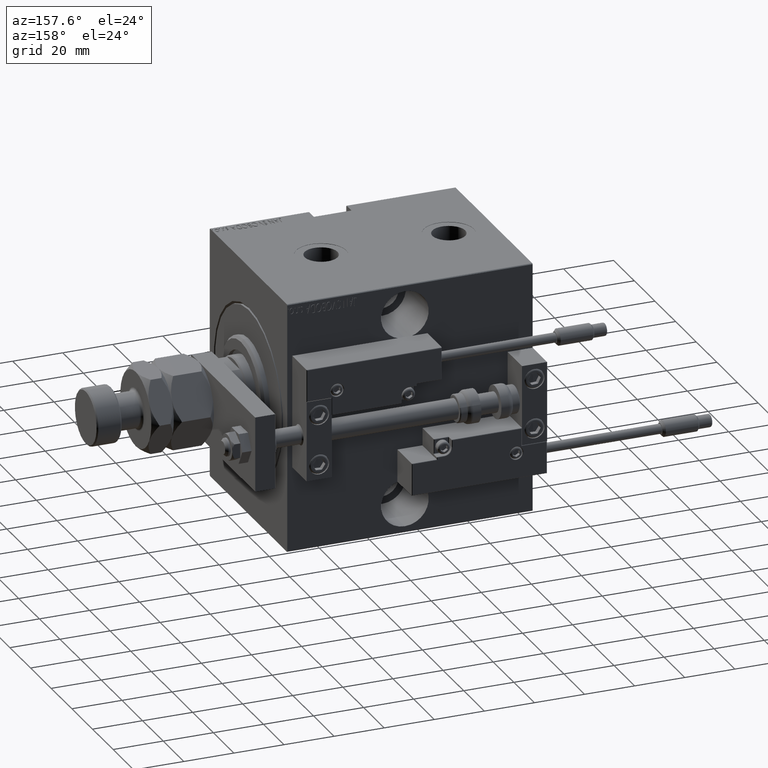
[diagram: clean part render]
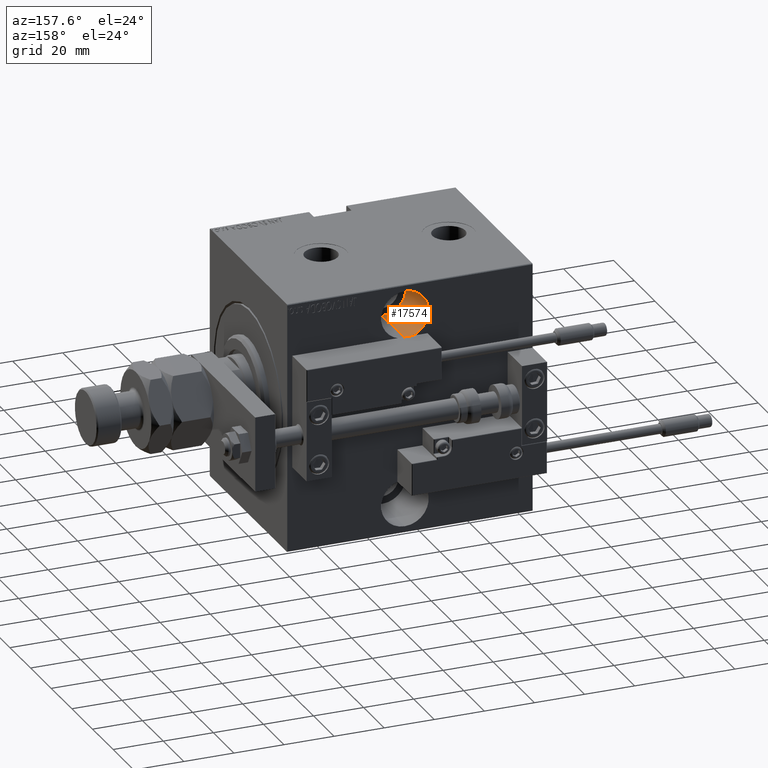
[diagram: same view with one face highlighted and labeled with its STEP entity id]
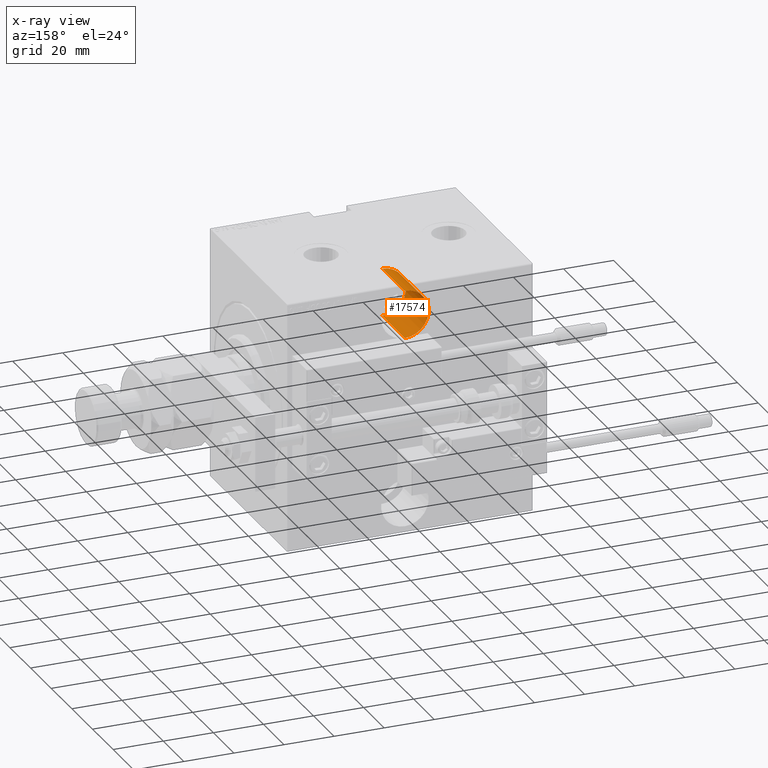
[diagram: x-ray of the same camera — body ghosted, the highlighted face saturated]
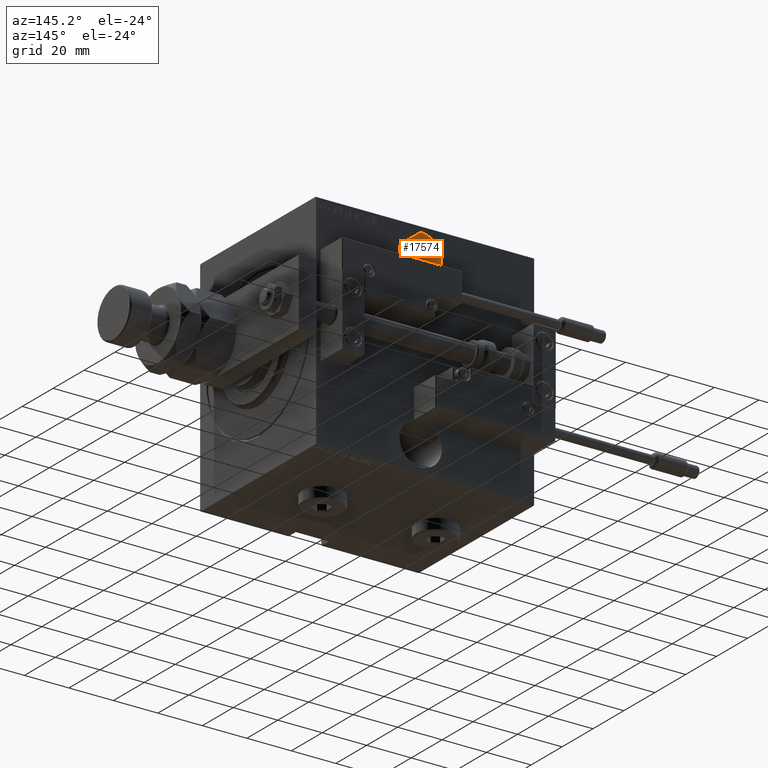
[diagram: same view with one face highlighted and labeled with its STEP entity id]
A machine part, auxiliary view. The second image highlights one B-rep face of the part: STEP entity #17574.
The next image is the same camera in x-ray: the body ghosted, the highlighted face saturated — about 0% of this face is hidden behind the body in this view.
A second angle (auxiliary view) of the same face is appended — the face is thin or edge-on in the first view.
In plain terms, the highlighted cylindrical surface (edge-blend (fillet) strip) has radius 9.5 mm, axis along (0, 1, 0).
Its self-contained STEP definition (entity closure, byte-faithful):
#590 = DIRECTION ( 'NONE',  ( 0.000000000000000000, -1.826024711554533420E-16, -1.000000000000000000 ) ) ;
#1257 = CIRCLE ( 'NONE', #31207, 9.500000000000001776 ) ;
#2475 = EDGE_CURVE ( 'NONE', #17339, #28651, #6400, .T. ) ;
#3113 = VERTEX_POINT ( 'NONE', #33244 ) ;
#4048 = CARTESIAN_POINT ( 'NONE',  ( 47.00000000000002132, -37.49999999999999289, 47.50000000000000000 ) ) ;
#5250 = CARTESIAN_POINT ( 'NONE',  ( 47.00000000000002132, -15.49999999999999289, 37.99999999999999289 ) ) ;
#6400 = CIRCLE ( 'NONE', #29496, 9.500000000000001776 ) ;
#7704 = ORIENTED_EDGE ( 'NONE', *, *, #21370, .F. ) ;
#8132 = CARTESIAN_POINT ( 'NONE',  ( 47.00000000000002132, -15.49999999999999112, 47.49999999999999289 ) ) ;
#12938 = DIRECTION ( 'NONE',  ( 0.000000000000000000, -1.000000000000000000, 1.963837897332234442E-16 ) ) ;
#13037 = DIRECTION ( 'NONE',  ( -0.000000000000000000, -1.000000000000000000, 1.963837897332234688E-16 ) ) ;
#16905 = ORIENTED_EDGE ( 'NONE', *, *, #26805, .T. ) ;
#17339 = VERTEX_POINT ( 'NONE', #36349 ) ;
#17574 = ADVANCED_FACE ( 'NONE', ( #22385 ), #34719, .F. ) ;
#18720 = CARTESIAN_POINT ( 'NONE',  ( 47.00000000000002132, -37.49999999999999289, 38.00000000000000000 ) ) ;
#19250 = DIRECTION ( 'NONE',  ( 0.000000000000000000, -1.000000000000000000, 1.963837897332234442E-16 ) ) ;
#20704 = DIRECTION ( 'NONE',  ( -0.000000000000000000, -1.000000000000000000, 1.963837897332234688E-16 ) ) ;
#21238 = EDGE_LOOP ( 'NONE', ( #7704, #37659, #16905, #45778 ) ) ;
#21370 = EDGE_CURVE ( 'NONE', #28651, #47427, #49638, .T. ) ;
#22385 = FACE_OUTER_BOUND ( 'NONE', #21238, .T. ) ;
#26805 = EDGE_CURVE ( 'NONE', #17339, #3113, #29531, .T. ) ;
#27370 = EDGE_CURVE ( 'NONE', #3113, #47427, #1257, .T. ) ;
#28651 = VERTEX_POINT ( 'NONE', #31768 ) ;
#29496 = AXIS2_PLACEMENT_3D ( 'NONE', #36241, #12938, #590 ) ;
#29531 = LINE ( 'NONE', #50957, #52538 ) ;
#31207 = AXIS2_PLACEMENT_3D ( 'NONE', #18720, #19250, #47655 ) ;
#31768 = CARTESIAN_POINT ( 'NONE',  ( 47.00000000000002132, -15.49999999999999112, 47.49999999999999289 ) ) ;
#33244 = CARTESIAN_POINT ( 'NONE',  ( 47.00000000000002132, -37.49999999999999289, 28.49999999999999645 ) ) ;
#34719 = CYLINDRICAL_SURFACE ( 'NONE', #35194, 9.500000000000001776 ) ;
#35194 = AXIS2_PLACEMENT_3D ( 'NONE', #5250, #13037, #42747 ) ;
#36241 = CARTESIAN_POINT ( 'NONE',  ( 47.00000000000002132, -15.49999999999999289, 37.99999999999999289 ) ) ;
#36349 = CARTESIAN_POINT ( 'NONE',  ( 47.00000000000002132, -15.49999999999999467, 28.49999999999998934 ) ) ;
#37659 = ORIENTED_EDGE ( 'NONE', *, *, #2475, .F. ) ;
#42105 = DIRECTION ( 'NONE',  ( -0.000000000000000000, -1.000000000000000000, 1.963837897332234688E-16 ) ) ;
#42747 = DIRECTION ( 'NONE',  ( 0.000000000000000000, -1.826024711554533420E-16, -1.000000000000000000 ) ) ;
#45778 = ORIENTED_EDGE ( 'NONE', *, *, #27370, .T. ) ;
#47427 = VERTEX_POINT ( 'NONE', #4048 ) ;
#47655 = DIRECTION ( 'NONE',  ( 0.000000000000000000, 0.000000000000000000, -1.000000000000000000 ) ) ;
#49638 = LINE ( 'NONE', #8132, #50790 ) ;
#50790 = VECTOR ( 'NONE', #20704, 1000.000000000000000 ) ;
#50957 = CARTESIAN_POINT ( 'NONE',  ( 47.00000000000002132, -15.49999999999999467, 28.49999999999998934 ) ) ;
#52538 = VECTOR ( 'NONE', #42105, 1000.000000000000000 ) ;